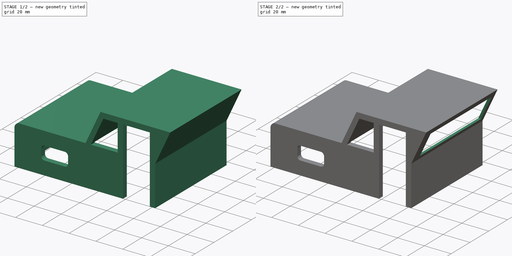
[diagram: build sequence overview — one tinted view per stage of 2, left to right]
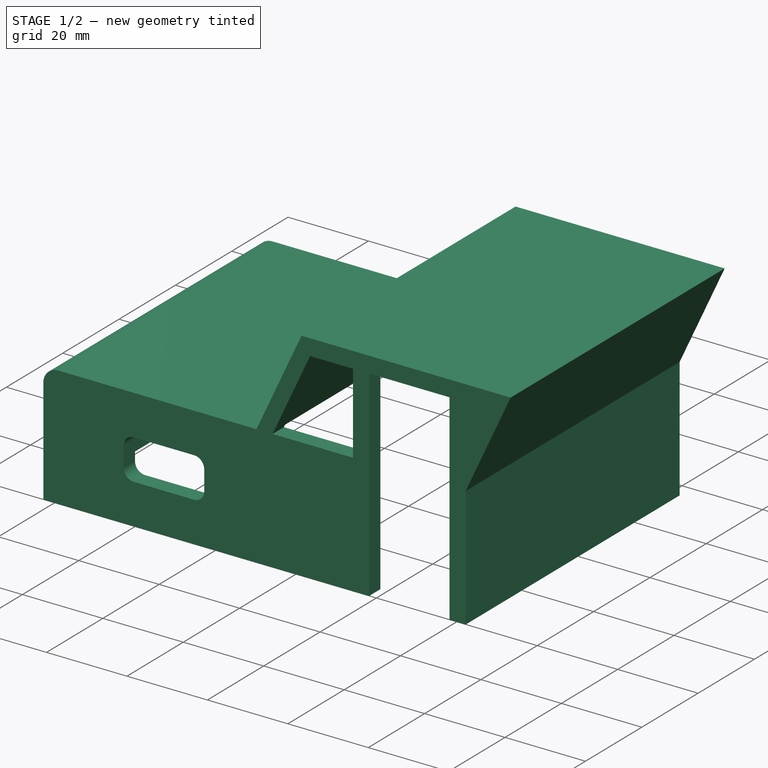
[diagram: stage 1 of 2 — iso view after this stage's code; geometry added in this stage tinted green]
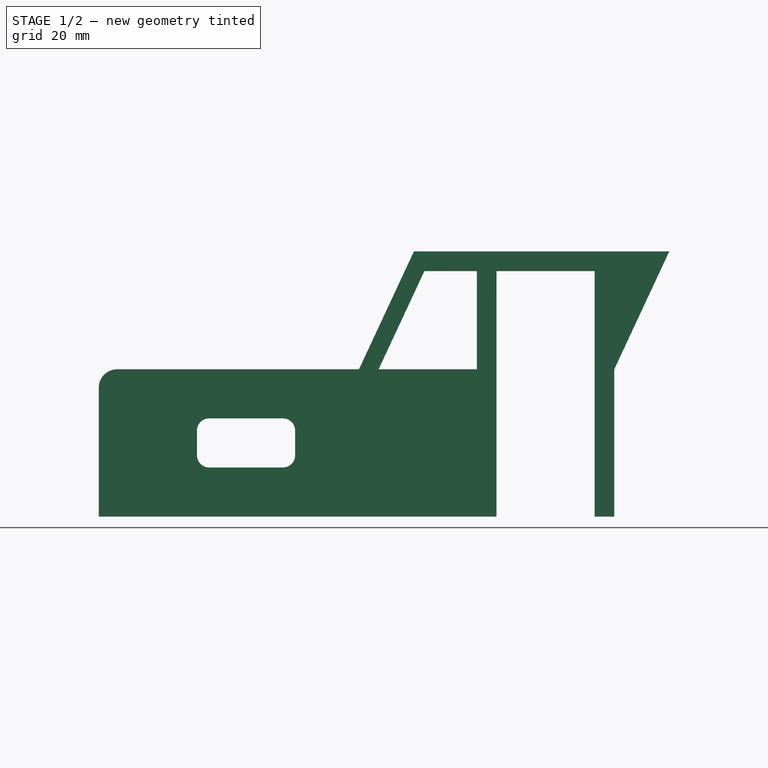
[diagram: stage 1 of 2 — front view after this stage's code; geometry added in this stage tinted green]
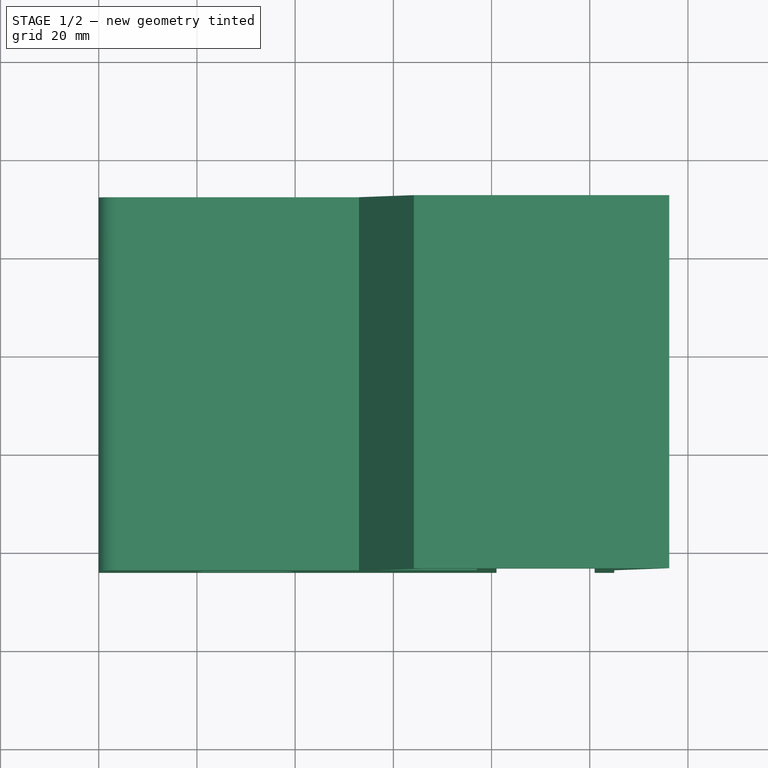
[diagram: stage 1 of 2 — top view after this stage's code; geometry added in this stage tinted green]
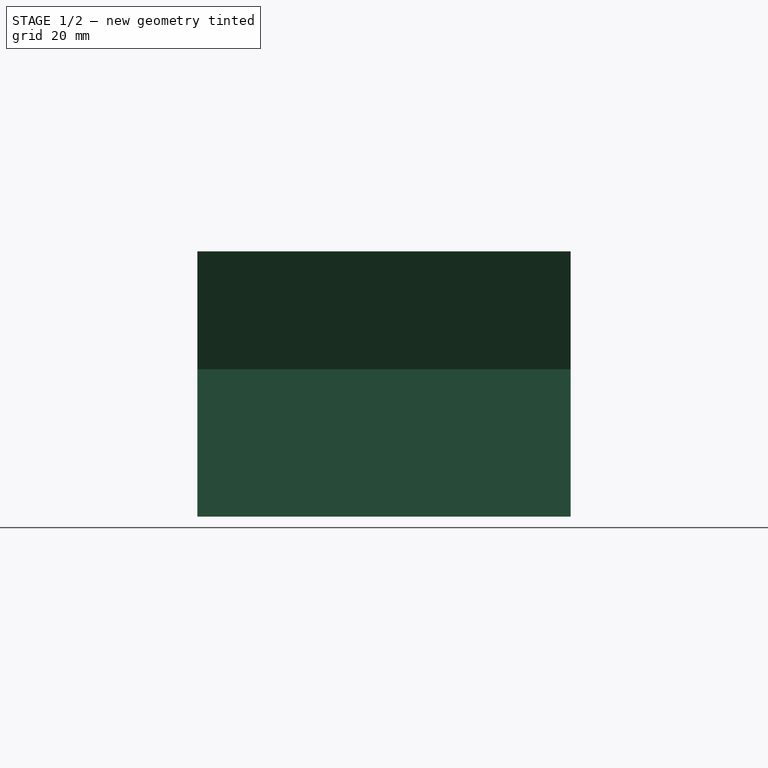
[diagram: stage 1 of 2 — right view after this stage's code; geometry added in this stage tinted green]
FCSTD DOCUMENT  (FreeCAD 0.20R29177 (Git))
Label: cabine_part1
License: All rights reserved
LicenseURL: http://en.wikipedia.org/wiki/All_rights_reserved
objects: Sketcher::SketchObject×4, PartDesign::Pad×2, PartDesign::Pocket×2, PartDesign::Body×1
note: 13 computed .brp shape members not serialized (recipe doc carries the construction recipe); baked Part::Feature solids carry a one-line shape summary decoded from their .brp

FEATURE [Sketcher::SketchObject] Sketch
  FullyConstrained = true
  MapMode = 5
  Placement = pos=(0,0,0) rot=(1,0,0;1.5708rad)
  Support = -> [XZ_Plane]
  sketch-geometry (24):
    g0: LineSegment StartX=4.86624e-11 StartY=0 StartZ=0 EndX=4.86624e-11 EndY=26.25 EndZ=0
    g1: LineSegment StartX=3.75 StartY=30 StartZ=0 EndX=53 EndY=30 EndZ=0
    g2: LineSegment StartX=53 StartY=30 StartZ=0 EndX=64.1914 EndY=54 EndZ=0
    g3: LineSegment StartX=64.1914 StartY=54 StartZ=0 EndX=116.191 EndY=54 EndZ=0
    g4: LineSegment StartX=116.191 StartY=54 StartZ=0 EndX=105 EndY=30 EndZ=0
    g5: LineSegment StartX=105 StartY=30 StartZ=0 EndX=105 EndY=0 EndZ=0
    g6: LineSegment StartX=22.5 StartY=20 StartZ=0 EndX=37.5 EndY=20 EndZ=0
    g7: LineSegment StartX=40 StartY=17.5 StartZ=0 EndX=40 EndY=12.5 EndZ=0
    g8: LineSegment StartX=37.5 StartY=10 StartZ=0 EndX=22.5 EndY=10 EndZ=0
    g9: LineSegment StartX=20 StartY=12.5 StartZ=0 EndX=20 EndY=17.5 EndZ=0
    g10: LineSegment StartX=4.86624e-11 StartY=0 StartZ=0 EndX=81 EndY=0 EndZ=0
    g11: LineSegment StartX=81 StartY=0 StartZ=0 EndX=81 EndY=50 EndZ=0
    g12: LineSegment StartX=81 StartY=50 StartZ=0 EndX=101 EndY=50 EndZ=0
    g13: LineSegment StartX=101 StartY=50 StartZ=0 EndX=101 EndY=0 EndZ=0
    g14: LineSegment StartX=101 StartY=0 StartZ=0 EndX=105 EndY=0 EndZ=0
    g15: LineSegment StartX=77 StartY=50 StartZ=0 EndX=77 EndY=30 EndZ=0
    g16: LineSegment StartX=77 StartY=30 StartZ=0 EndX=57 EndY=30 EndZ=0
    g17: LineSegment StartX=57 StartY=30 StartZ=0 EndX=66.3262 EndY=50 EndZ=0
    g18: LineSegment StartX=66.3262 StartY=50 StartZ=0 EndX=77 EndY=50 EndZ=0
    g19: ArcOfCircle CenterX=22.5 CenterY=17.5 CenterZ=0 NormalX=0 NormalY=0 NormalZ=1 AngleXU=0 Radius=2.5 StartAngle=1.5708 EndAngle=3.14159
    g20: ArcOfCircle CenterX=22.5 CenterY=12.5 CenterZ=0 NormalX=0 NormalY=0 NormalZ=1 AngleXU=0 Radius=2.5 StartAngle=3.14159 EndAngle=4.71239
    g21: ArcOfCircle CenterX=37.5 CenterY=12.5 CenterZ=0 NormalX=0 NormalY=0 NormalZ=1 AngleXU=0 Radius=2.5 StartAngle=4.71239 EndAngle=6.28319
    g22: ArcOfCircle CenterX=37.5 CenterY=17.5 CenterZ=0 NormalX=0 NormalY=0 NormalZ=1 AngleXU=0 Radius=2.5 StartAngle=0 EndAngle=1.5708
    g23: ArcOfCircle CenterX=3.75 CenterY=26.25 CenterZ=0 NormalX=0 NormalY=0 NormalZ=1 AngleXU=0 Radius=3.75 StartAngle=1.5708 EndAngle=3.14159
  constraints (66):
    c: Coincident(g-1,g0)
    c: Horizontal(g1)
    c: Coincident(g1,g2)
    c: Coincident(g2,g3)
    c: Horizontal(g3)
    c: Coincident(g3,g4)
    c: Coincident(g4,g5)
    c: PointOnObject(g5,g-1)
    c: Vertical(g5)
    c: Horizontal(g6)
    c: Horizontal(g8)
    c: Vertical(g7)
    c: Vertical(g9)
    c: Coincident(g0,g10)
    c: Horizontal(g10)
    c: Coincident(g10,g11)
    c: Vertical(g11)
    c: Coincident(g11,g12)
    c: Horizontal(g12)
    c: Coincident(g12,g13)
    c: PointOnObject(g13,g-1)
    c: Vertical(g13)
    c: Coincident(g13,g14)
    c: Coincident(g14,g5)
    c: Vertical(g15)
    c: Coincident(g15,g16)
    c: Horizontal(g16)
    c: Coincident(g16,g17)
    c: Coincident(g17,g18)
    c: Coincident(g18,g15)
    c: Horizontal(g18)
    c: DistanceX(g0,g5) = 105
    c: DistanceX(g12,g12) = 20
    c: DistanceX(g14,g14) = 4
    c: DistanceX(g15,g11) = 4
    c: DistanceY(g16,g1) = 0
    c: DistanceX(g1,g16) = 4
    c: DistanceY(g4,g15) = 0
    c: DistanceY(g13,g13) = 50
    c: DistanceY(g15,g11) = 0
    c: DistanceY(g12,g3) = 4
    c: DistanceX(g3,g3) = 52
    c: Parallel(g4,g2)
    c: Parallel(g17,g2)
    c: Angle(g5,g4) = 2.70526
    c: Tangent(g6,g19) = 1.5708
    c: Tangent(g9,g19) = 1.5708
    c: Tangent(g9,g20) = 1.5708
    c: Tangent(g8,g20) = 1.5708
    c: Tangent(g8,g21) = 1.5708
    c: Tangent(g7,g21) = 1.5708
    c: Tangent(g7,g22) = 1.5708
    c: Tangent(g6,g22) = 1.5708
    c: Diameter(g22) = 5
    c: Diameter(g21) = 5
    c: Diameter(g19) = 5
    c: Diameter(g20) = 5
    c: DistanceY(g8,g6) = 10
    c: DistanceX(g9,g7) = 20
    c: DistanceX(g0,g9) = 20
    c: DistanceY(g0,g8) = 10
    c: Tangent(g1,g23) = 1.5708
    c: Tangent(g0,g23) = 1.5708
    c: Diameter(g23) = 7.5
    c: Vertical(g0)
    c: DistanceY(g0,g1) = 30
FEATURE [PartDesign::Pad] Pad
  Direction = (0,-1,-2e-16)
  Length = 4
  Length2 = 10
  Placement = pos=(0,0,0) rot=(1,0,0;1.5708rad)
  Profile = -> Sketch
  ReferenceAxis = -> Sketch [N_Axis]
  Type = 0
FEATURE [Sketcher::SketchObject] Sketch001
  FullyConstrained = true
  MapMode = 5
  Placement = pos=(0,0,0) rot=(-1,0,0;1.5708rad)
  Support = -> [Pad]
  sketch-geometry (16):
    g0: LineSegment StartX=0 StartY=0 StartZ=0 EndX=0 EndY=-26.25 EndZ=0
    g1: LineSegment StartX=3.75 StartY=-30 StartZ=0 EndX=53 EndY=-30 EndZ=0
    g2: LineSegment StartX=53 StartY=-30 StartZ=0 EndX=64.1914 EndY=-54 EndZ=0
    g3: LineSegment StartX=64.1914 StartY=-54 StartZ=0 EndX=116.191 EndY=-54 EndZ=0
    g4: LineSegment StartX=116.191 StartY=-54 StartZ=0 EndX=105 EndY=-30 EndZ=0
    g5: LineSegment StartX=105 StartY=-30 StartZ=0 EndX=105 EndY=0 EndZ=0
    g6: LineSegment StartX=105 StartY=0 StartZ=0 EndX=103 EndY=0 EndZ=0
    g7: LineSegment StartX=103 StartY=0 StartZ=0 EndX=103 EndY=-30 EndZ=0
    g8: LineSegment StartX=103 StartY=-30 StartZ=0 EndX=113.259 EndY=-52 EndZ=0
    g9: LineSegment StartX=113.259 StartY=-52 StartZ=0 EndX=65.2588 EndY=-52 EndZ=0
    g10: LineSegment StartX=65.2588 StartY=-52 StartZ=0 EndX=54.0674 EndY=-28 EndZ=0
    g11: LineSegment StartX=54.0674 StartY=-28 StartZ=0 EndX=3.75 EndY=-28 EndZ=0
    g12: LineSegment StartX=2 StartY=-26.25 StartZ=0 EndX=2 EndY=0 EndZ=0
    g13: LineSegment StartX=2 StartY=0 StartZ=0 EndX=0 EndY=0 EndZ=0
    g14: ArcOfCircle CenterX=3.75 CenterY=-26.25 CenterZ=0 NormalX=0 NormalY=0 NormalZ=1 AngleXU=0 Radius=3.75 StartAngle=3.14159 EndAngle=4.71239
    g15: ArcOfCircle CenterX=3.75 CenterY=-26.25 CenterZ=0 NormalX=0 NormalY=0 NormalZ=1 AngleXU=0 Radius=1.75 StartAngle=3.14159 EndAngle=4.71239
  constraints (45):
    c: Coincident(g-1,g0)
    c: Horizontal(g1)
    c: Coincident(g1,g2)
    c: Coincident(g2,g3)
    c: Horizontal(g3)
    c: Coincident(g3,g4)
    c: Coincident(g4,g5)
    c: Vertical(g5)
    c: Coincident(g5,g6)
    c: Coincident(g6,g7)
    c: Vertical(g7)
    c: Coincident(g7,g8)
    c: Coincident(g8,g9)
    c: Horizontal(g9)
    c: Coincident(g9,g10)
    c: Coincident(g10,g11)
    c: Horizontal(g11)
    c: Vertical(g12)
    c: Coincident(g12,g13)
    c: Coincident(g13,g0)
    c: Horizontal(g13)
    c: PointOnObject(g5,g-1)
    c: Horizontal(g6)
    c: DistanceX(g0,g5) = 105
    c: DistanceX(g6,g6) = 2
    c: DistanceX(g13,g13) = 2
    c: Tangent(g0,g14) = -1.5708
    c: Tangent(g1,g14) = -1.5708
    c: Tangent(g11,g15) = 1.5708
    c: Tangent(g12,g15) = 1.5708
    c: Angle(g4,g5) = 2.70526
    c: DistanceY(g1,g4) = 0
    c: DistanceY(g1,g0) = 30
    c: Diameter(g14) = 7.5
    c: Vertical(g0)
    c: Diameter(g15) = 3.5
    c: DistanceY(g3,g8) = 2
    c: DistanceY(g3,g0) = 54
    c: Parallel(g8,g4)
    c: Parallel(g10,g4)
    c: DistanceY(g7,g4) = 0
    c: DistanceY(g1,g11) = 2
    c: Parallel(g2,g10)
    c: DistanceX(g0,g1) = 53
    c: DistanceX(g9,g9) = 48
FEATURE [PartDesign::Pad] Pad001
  BaseFeature = -> Pad
  Direction = (0,1,2e-16)
  Length = 72
  Length2 = 10
  Placement = pos=(0,0,0) rot=(1,0,0;1.5708rad)
  Profile = -> Sketch001
  ReferenceAxis = -> Sketch001 [N_Axis]
  Type = 0
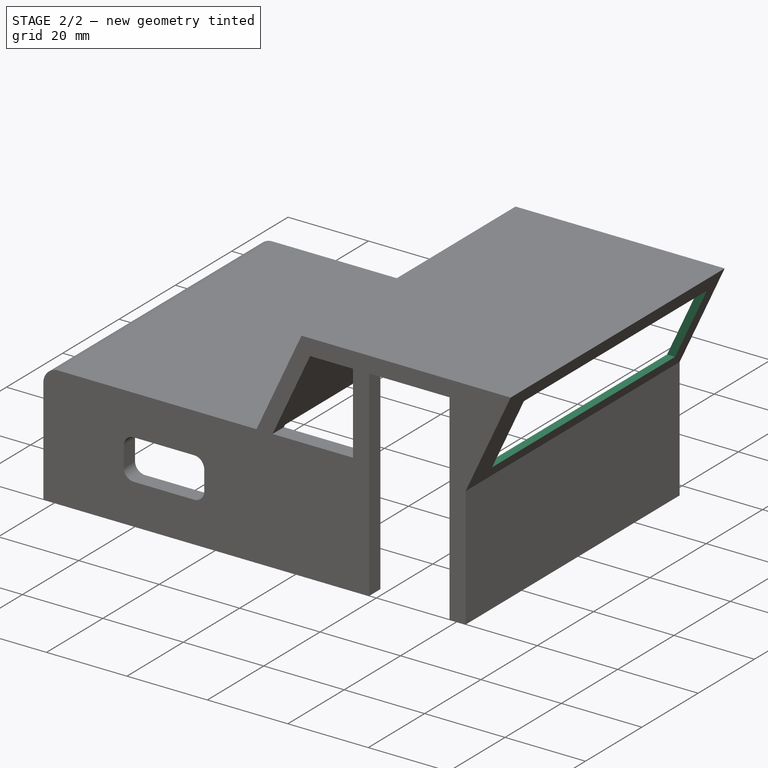
[diagram: stage 2 of 2 — iso view after this stage's code; geometry added in this stage tinted green]
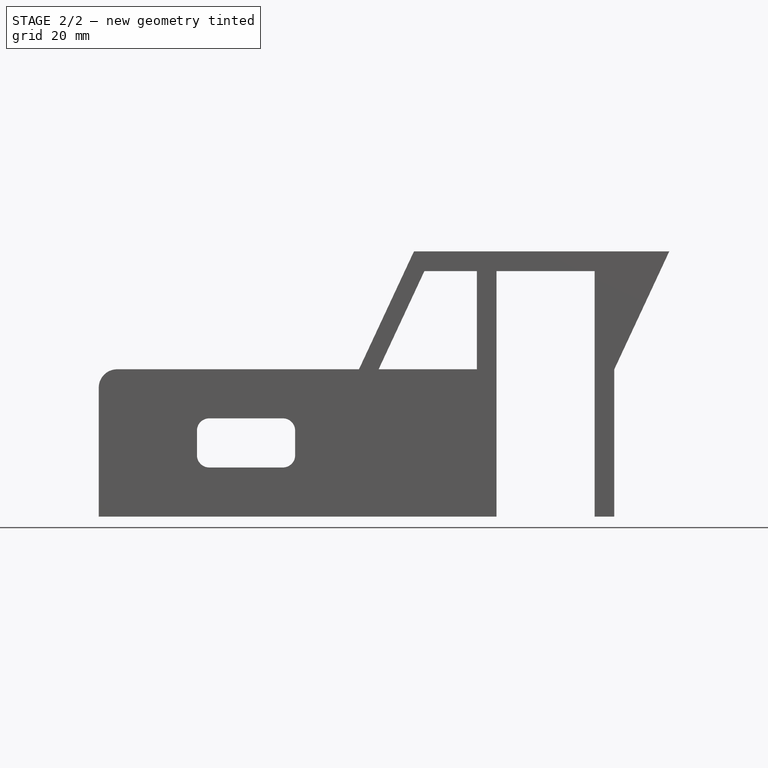
[diagram: stage 2 of 2 — front view after this stage's code; geometry added in this stage tinted green]
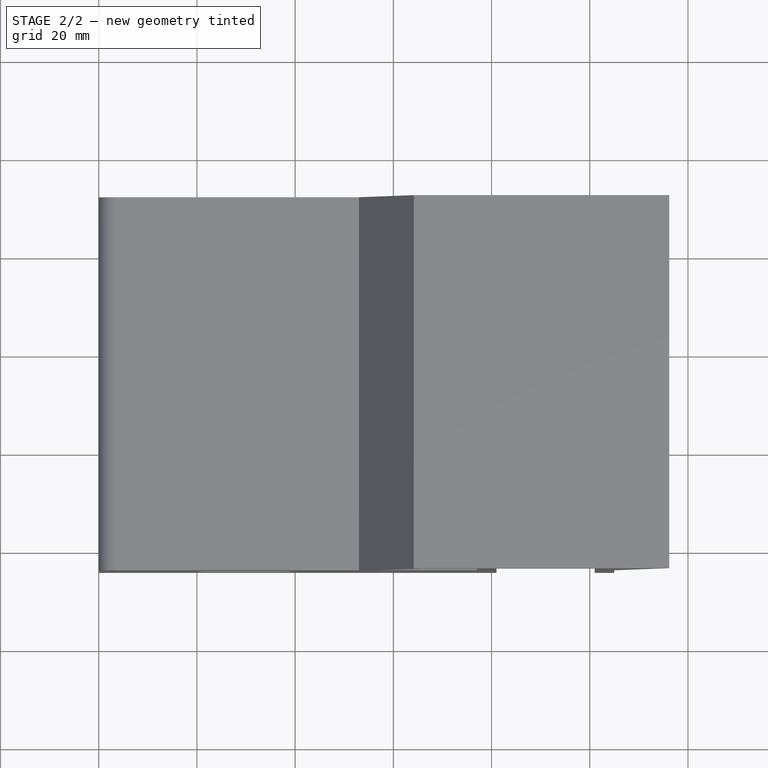
[diagram: stage 2 of 2 — top view after this stage's code; geometry added in this stage tinted green]
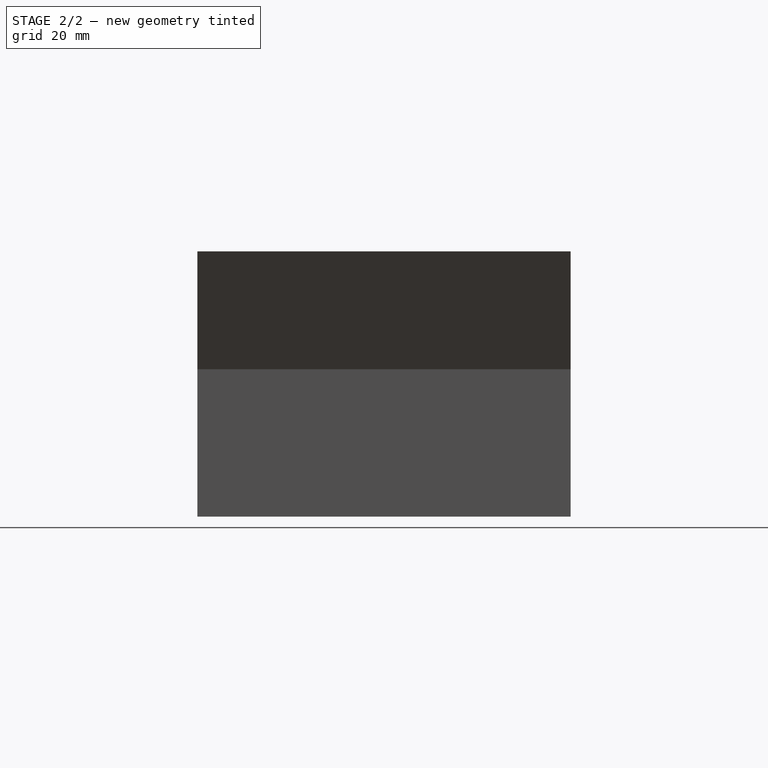
[diagram: stage 2 of 2 — right view after this stage's code; geometry added in this stage tinted green]
FEATURE [Sketcher::SketchObject] Sketch002
  ExternalGeometry = -> [Pad001]
  FullyConstrained = true
  MapMode = 5
  Placement = pos=(0,0,0) rot=(0.707107,0,-0.707107;3.14159rad)
  Support = -> [Pad001]
  sketch-geometry (4):
    g0: LineSegment StartX=0 StartY=-21 StartZ=0 EndX=-23 EndY=-21 EndZ=0
    g1: LineSegment StartX=-23 StartY=-21 StartZ=0 EndX=-23 EndY=-51 EndZ=0
    g2: LineSegment StartX=-23 StartY=-51 StartZ=0 EndX=0 EndY=-51 EndZ=0
    g3: LineSegment StartX=0 StartY=-51 StartZ=0 EndX=0 EndY=-21 EndZ=0
  constraints (12):
    c: Coincident(g0,g1)
    c: Coincident(g1,g2)
    c: Coincident(g2,g3)
    c: Coincident(g3,g0)
    c: Horizontal(g0)
    c: Horizontal(g2)
    c: Vertical(g1)
    c: Vertical(g3)
    c: PointOnObject(g0,g-2)
    c: DistanceY(g3,g3) = 30
    c: DistanceX(g0,g0) = 23
    c: DistanceY(g0,g-1) = 21
FEATURE [PartDesign::Pocket] Pocket
  BaseFeature = -> Pad001
  Direction = (1,0,2e-16)
  Length = 5
  Length2 = 5
  Placement = pos=(0,0,0) rot=(1,0,0;1.5708rad)
  Profile = -> Sketch002
  ReferenceAxis = -> Sketch002 [N_Axis]
  Type = 0
FEATURE [Sketcher::SketchObject] Sketch003
  FullyConstrained = false
  MapMode = 5
  Placement = pos=(81,0,0) rot=(0.707107,0,0.707107;3.14159rad)
  Support = -> [Pocket]
  sketch-geometry (4):
    g0: LineSegment StartX=32.8179 StartY=-3.5 StartZ=0 EndX=49.8179 EndY=-3.5 EndZ=0
    g1: LineSegment StartX=49.8179 StartY=-3.5 StartZ=0 EndX=49.8179 EndY=-68.5 EndZ=0
    g2: LineSegment StartX=49.8179 StartY=-68.5 StartZ=0 EndX=32.8179 EndY=-68.5 EndZ=0
    g3: LineSegment StartX=32.8179 StartY=-68.5 StartZ=0 EndX=32.8179 EndY=-3.5 EndZ=0
  constraints (11):
    c: Coincident(g0,g1)
    c: Coincident(g1,g2)
    c: Coincident(g2,g3)
    c: Coincident(g3,g0)
    c: Horizontal(g0)
    c: Horizontal(g2)
    c: Vertical(g1)
    c: Vertical(g3)
    c: DistanceX(g0,g0) = 17
    c: DistanceY(g0,g-1) = 3.5
    c: DistanceY(g3,g3) = 65
FEATURE [PartDesign::Pocket] Pocket001
  BaseFeature = -> Pocket
  Direction = (-1,0,2e-16)
  Length = 5
  Length2 = 5
  Placement = pos=(0,0,0) rot=(1,0,0;1.5708rad)
  Profile = -> Sketch003
  ReferenceAxis = -> Sketch003 [N_Axis]
  Reversed = true
  Type = 1
FEATURE [PartDesign::Body] Body
  Group = -> [Sketch,Pad,Sketch001,Pad001,Sketch002,Pocket,Sketch003,Pocket001]
  Origin = -> Origin
  Tip = -> Pocket001
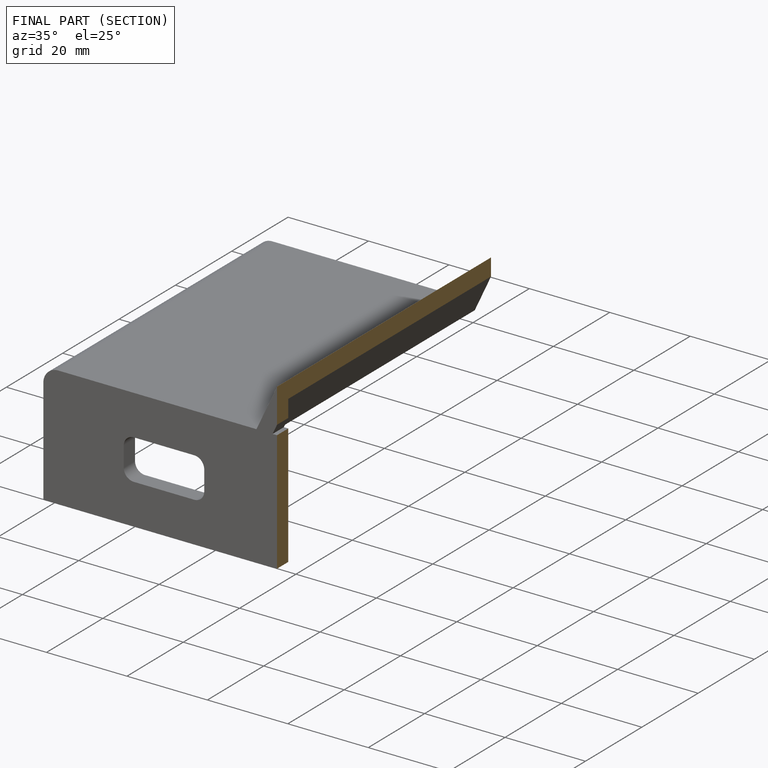
[diagram: finished part — half-section view (interior)]
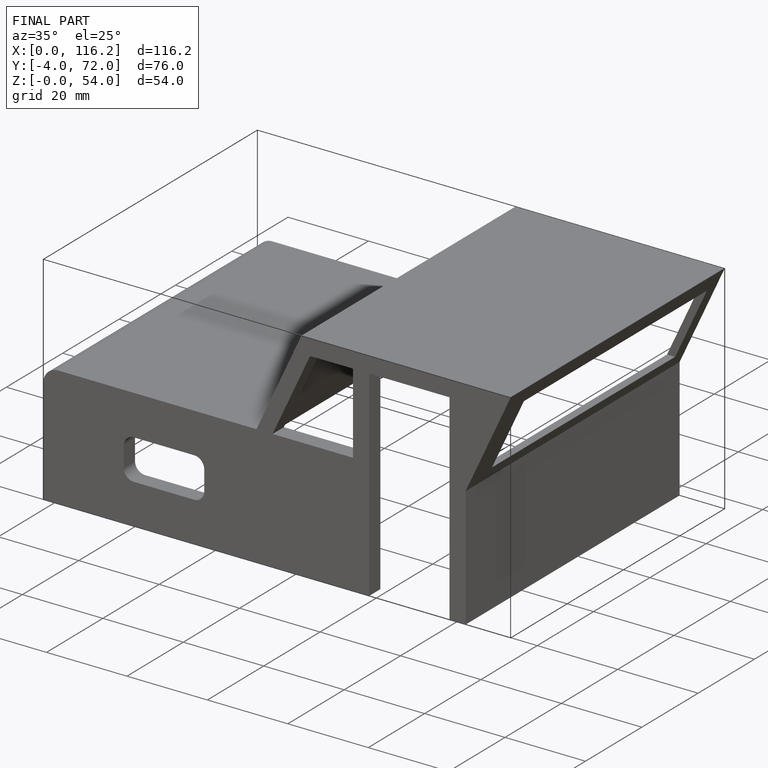
[diagram: finished part — iso view with bounding-box wireframe]
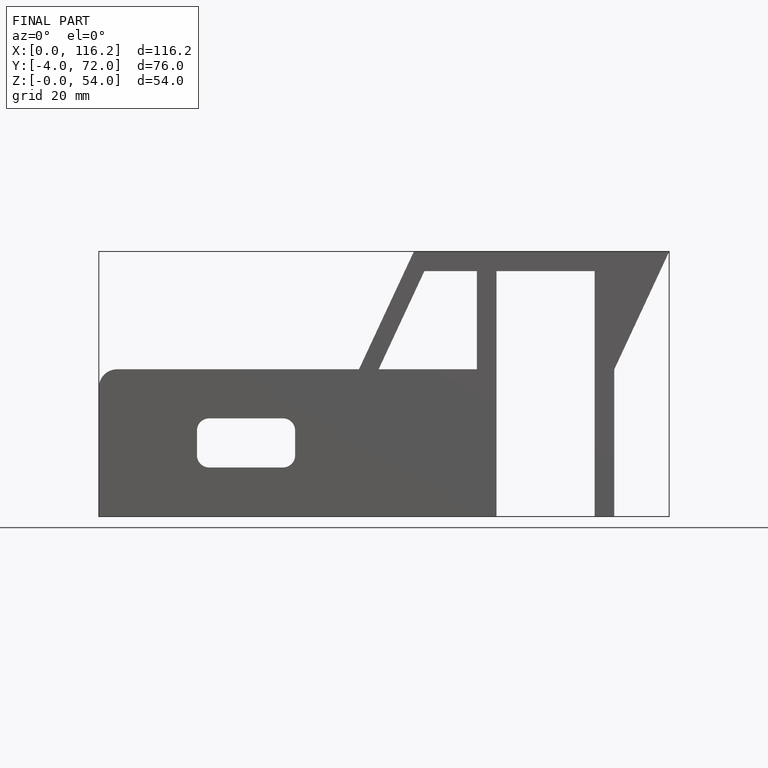
[diagram: finished part — front view with bounding-box wireframe]
